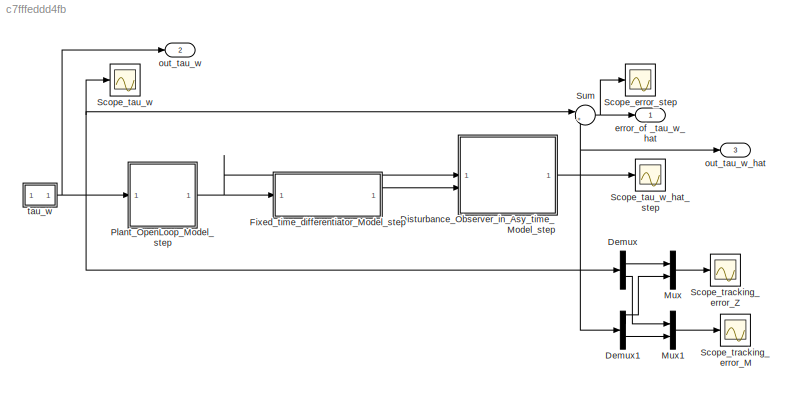
MODEL slx_c7fffeddd4fb
KIND model
CONFIG AbsTol = auto
CONFIG EnableMultiTasking = off
CONFIG FixedStep = 1e-3
CONFIG MaxStep = auto
CONFIG MinStep = auto
CONFIG RelTol = 1e-3
CONFIG SampleTimeConstraint = Unconstrained
CONFIG SolverName = FixedStepAuto
CONFIG StartTime = 0.0
CONFIG StopTime = 150
BLOCK [Demux] Demux
  Outputs = 2
BLOCK [Demux] Demux1
  Outputs = 2
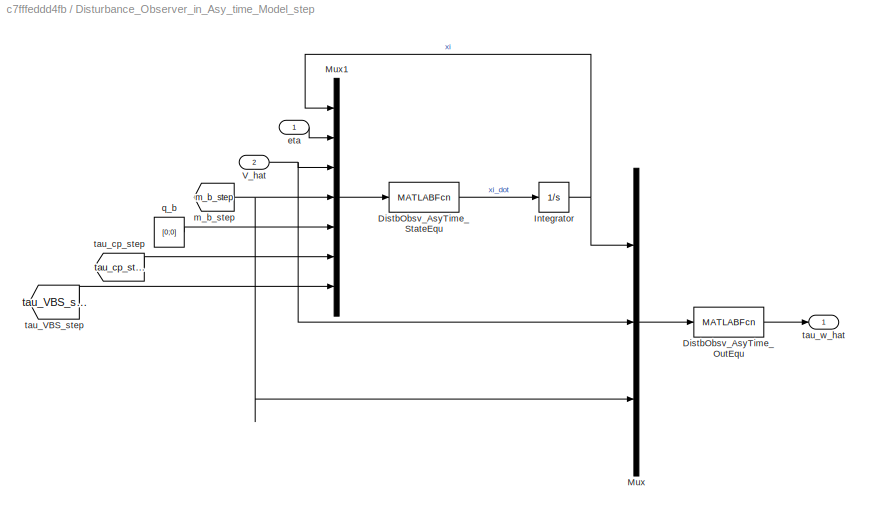
BLOCK [SubSystem] Disturbance_Observer_in_Asy_time_Model_step
BLOCK [MATLABFcn] Disturbance_Observer_in_Asy_time_Model_step/DistbObsv_AsyTime_OutEqu
  MATLABFcn = DistbObsv_AsyTime_OutEqu
  OutputDimensions = 2
  OutputSignalType = real
BLOCK [MATLABFcn] Disturbance_Observer_in_Asy_time_Model_step/DistbObsv_AsyTime_StateEqu
  MATLABFcn = DistbObsv_AsyTime_StateEqu
  OutputDimensions = 2
  OutputSignalType = real
BLOCK [Integrator] Disturbance_Observer_in_Asy_time_Model_step/Integrator
BLOCK [Mux] Disturbance_Observer_in_Asy_time_Model_step/Mux
  DisplayOption = bar
  Inputs = 3
BLOCK [Mux] Disturbance_Observer_in_Asy_time_Model_step/Mux1
  DisplayOption = bar
  Inputs = 7
BLOCK [Inport] Disturbance_Observer_in_Asy_time_Model_step/V_hat
  Port = 2
  PortDimensions = 2
  SignalType = real
BLOCK [Inport] Disturbance_Observer_in_Asy_time_Model_step/eta
  PortDimensions = 2
BLOCK [From] Disturbance_Observer_in_Asy_time_Model_step/m_b_step
  GotoTag = m_b_step
  TagVisibility = global
BLOCK [Constant] Disturbance_Observer_in_Asy_time_Model_step/q_b
  Value = [0;0]
BLOCK [From] Disturbance_Observer_in_Asy_time_Model_step/tau_VBS_step
  GotoTag = tau_VBS_step
  TagVisibility = global
BLOCK [From] Disturbance_Observer_in_Asy_time_Model_step/tau_cp_step
  GotoTag = tau_cp_step
  TagVisibility = global
BLOCK [Outport] Disturbance_Observer_in_Asy_time_Model_step/tau_w_hat
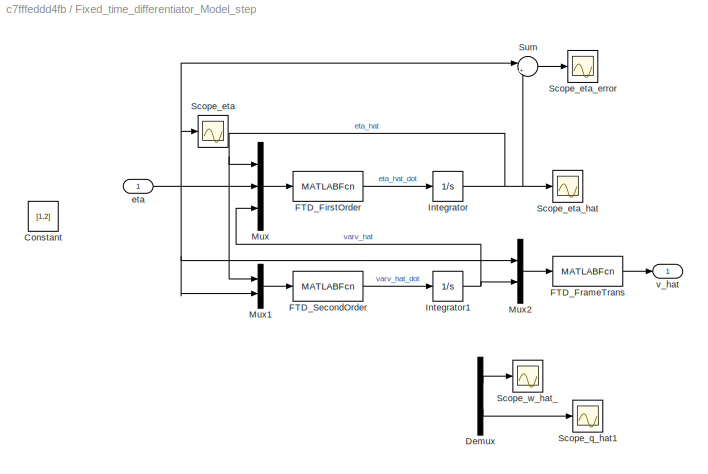
BLOCK [SubSystem] Fixed_time_differentiator_Model_step
BLOCK [Constant] Fixed_time_differentiator_Model_step/Constant
  Value = [1,2]
BLOCK [Demux] Fixed_time_differentiator_Model_step/Demux
  Outputs = 2
BLOCK [MATLABFcn] Fixed_time_differentiator_Model_step/FTD_FirstOrder
  MATLABFcn = FTD_FirstOrder
  OutputDimensions = 2
  OutputSignalType = real
BLOCK [MATLABFcn] Fixed_time_differentiator_Model_step/FTD_FrameTrans
  MATLABFcn = FTD_FrameTrans
  OutputSignalType = real
BLOCK [MATLABFcn] Fixed_time_differentiator_Model_step/FTD_SecondOrder
  MATLABFcn = FTD_SecondOrder
  OutputDimensions = 2
  OutputSignalType = real
BLOCK [Integrator] Fixed_time_differentiator_Model_step/Integrator
BLOCK [Integrator] Fixed_time_differentiator_Model_step/Integrator1
BLOCK [Mux] Fixed_time_differentiator_Model_step/Mux
  DisplayOption = bar
  Inputs = 3
BLOCK [Mux] Fixed_time_differentiator_Model_step/Mux1
  DisplayOption = bar
  Inputs = 2
BLOCK [Mux] Fixed_time_differentiator_Model_step/Mux2
  DisplayOption = bar
  Inputs = 2
BLOCK [Scope] Fixed_time_differentiator_Model_step/Scope_eta
  Floating = off
  NumInputPorts = 1
  ScopeSpecificationString = Simulink.scopes.TimeScopeBlockCfg('CurrentConfiguration', extmgr.ConfigurationSet(extmgr.Configuration('Core','General UI',true),extmgr.Configuration('Core','Source UI',true),extmgr.Configuration('Sources','WiredSimulink',true,'DataLoggingVariableName','ScopeData1'),extmgr.Configuration('Visuals','Time Domain',true,'SerializedDisplays',{struct('MinYLimReal','-15786231295403675401803915265757867719...<+3546ch>
BLOCK [Scope] Fixed_time_differentiator_Model_step/Scope_eta_error
  Floating = off
  NumInputPorts = 1
  ScopeSpecificationString = Simulink.scopes.TimeScopeBlockCfg('CurrentConfiguration', extmgr.ConfigurationSet(extmgr.Configuration('Core','General UI',true),extmgr.Configuration('Core','Source UI',true),extmgr.Configuration('Sources','WiredSimulink',true,'DataLoggingVariableName','ScopeData1'),extmgr.Configuration('Visuals','Time Domain',true,'SerializedDisplays',{struct('MinYLimReal','-0.00000029','MaxYLimReal','0.00000029'...<+1469ch>
BLOCK [Scope] Fixed_time_differentiator_Model_step/Scope_eta_hat
  Floating = off
  NumInputPorts = 1
  ScopeSpecificationString = Simulink.scopes.TimeScopeBlockCfg('CurrentConfiguration', extmgr.ConfigurationSet(extmgr.Configuration('Core','General UI',true),extmgr.Configuration('Core','Source UI',true),extmgr.Configuration('Sources','WiredSimulink',true,'DataLoggingVariableName','ScopeData1'),extmgr.Configuration('Visuals','Time Domain',true,'SerializedDisplays',{struct('MinYLimReal','-0.0267','MaxYLimReal','0.04782','YLabe...<+1426ch>
BLOCK [Scope] Fixed_time_differentiator_Model_step/Scope_q_hat1
  Floating = off
  NumInputPorts = 1
  ScopeSpecificationString = Simulink.scopes.TimeScopeBlockCfg('CurrentConfiguration', extmgr.ConfigurationSet(extmgr.Configuration('Core','General UI',true),extmgr.Configuration('Core','Source UI',true),extmgr.Configuration('Sources','WiredSimulink',true,'DataLoggingVariableName','ScopeData2'),extmgr.Configuration('Visuals','Time Domain',true,'SerializedDisplays',{struct('MinYLimReal','-1.1735','MaxYLimReal','10.38134','YLab...<+1401ch>
BLOCK [Scope] Fixed_time_differentiator_Model_step/Scope_w_hat_
  Floating = off
  NumInputPorts = 1
  ScopeSpecificationString = Simulink.scopes.TimeScopeBlockCfg('CurrentConfiguration', extmgr.ConfigurationSet(extmgr.Configuration('Core','General UI',true),extmgr.Configuration('Core','Source UI',true),extmgr.Configuration('Sources','WiredSimulink',true),extmgr.Configuration('Visuals','Time Domain',true,'SerializedDisplays',{struct('MinYLimReal','-16.18124','MaxYLimReal','-0.62236','YLabelReal','','MinYLimMag','0.00000','Ma...<+1365ch>
BLOCK [Sum] Fixed_time_differentiator_Model_step/Sum
  Inputs = |+-
BLOCK [Inport] Fixed_time_differentiator_Model_step/eta
BLOCK [Outport] Fixed_time_differentiator_Model_step/v_hat
  SignalType = real
BLOCK [Mux] Mux
  DisplayOption = bar
  Inputs = 2
BLOCK [Mux] Mux1
  DisplayOption = bar
  Inputs = 2
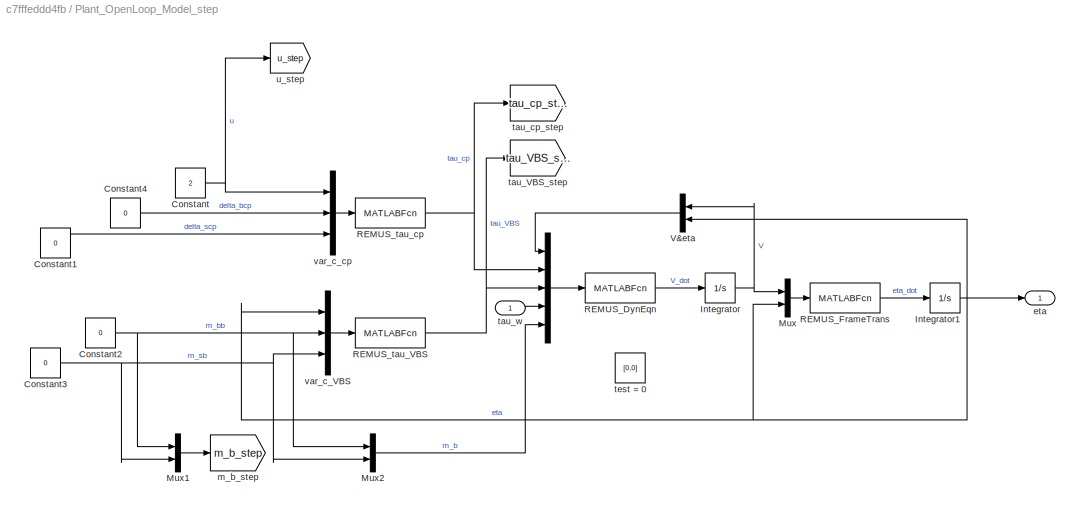
BLOCK [SubSystem] Plant_OpenLoop_Model_step
BLOCK [Mux] Plant_OpenLoop_Model_step/ 
  DisplayOption = bar
  Inputs = 5
BLOCK [Constant] Plant_OpenLoop_Model_step/Constant
  OutDataTypeStr = Inherit: Inherit via back propagation
  Value = 2
BLOCK [Constant] Plant_OpenLoop_Model_step/Constant1
  Value = 0
BLOCK [Constant] Plant_OpenLoop_Model_step/Constant2
  Value = 0
BLOCK [Constant] Plant_OpenLoop_Model_step/Constant3
  Value = 0
BLOCK [Constant] Plant_OpenLoop_Model_step/Constant4
  Value = 0
BLOCK [Integrator] Plant_OpenLoop_Model_step/Integrator
BLOCK [Integrator] Plant_OpenLoop_Model_step/Integrator1
BLOCK [Mux] Plant_OpenLoop_Model_step/Mux
  DisplayOption = bar
  Inputs = 2
BLOCK [Mux] Plant_OpenLoop_Model_step/Mux1
  DisplayOption = bar
  Inputs = 2
BLOCK [Mux] Plant_OpenLoop_Model_step/Mux2
  DisplayOption = bar
  Inputs = 2
BLOCK [MATLABFcn] Plant_OpenLoop_Model_step/REMUS_DynEqn
  MATLABFcn = REMUS_DynEqn
  OutputDimensions = 2
  OutputSignalType = real
BLOCK [MATLABFcn] Plant_OpenLoop_Model_step/REMUS_FrameTrans
  MATLABFcn = REMUS_FrameTrans
  OutputDimensions = 2
  OutputSignalType = real
BLOCK [MATLABFcn] Plant_OpenLoop_Model_step/REMUS_tau_VBS
  MATLABFcn = REMUS_tau_VBS
  OutputDimensions = 2
  OutputSignalType = real
BLOCK [MATLABFcn] Plant_OpenLoop_Model_step/REMUS_tau_cp
  MATLABFcn = REMUS_tau_cp
  OutputDimensions = 2
  OutputSignalType = real
BLOCK [Mux] Plant_OpenLoop_Model_step/V&eta
  DisplayOption = bar
  Inputs = 2
  NameLocation = top
BLOCK [Outport] Plant_OpenLoop_Model_step/eta
BLOCK [Goto] Plant_OpenLoop_Model_step/m_b_step
  GotoTag = m_b_step
  TagVisibility = global
BLOCK [Goto] Plant_OpenLoop_Model_step/tau_VBS_step
  GotoTag = tau_VBS_step
  TagVisibility = global
BLOCK [Goto] Plant_OpenLoop_Model_step/tau_cp_step
  GotoTag = tau_cp_step
  TagVisibility = global
BLOCK [Inport] Plant_OpenLoop_Model_step/tau_w
BLOCK [Constant] Plant_OpenLoop_Model_step/test = 0
  Value = [0,0]
BLOCK [Goto] Plant_OpenLoop_Model_step/u_step
  GotoTag = u_step
  TagVisibility = global
BLOCK [Mux] Plant_OpenLoop_Model_step/var_c_VBS
  DisplayOption = bar
  Inputs = 3
BLOCK [Mux] Plant_OpenLoop_Model_step/var_c_cp
  DisplayOption = bar
  Inputs = 3
BLOCK [Scope] Scope_error_step
  Floating = off
  NumInputPorts = 1
  ScopeSpecificationString = Simulink.scopes.TimeScopeBlockCfg('CurrentConfiguration', extmgr.ConfigurationSet(extmgr.Configuration('Core','General UI',true),extmgr.Configuration('Core','Source UI',true),extmgr.Configuration('Sources','WiredSimulink',true,'DataLoggingVariableName','ScopeData1'),extmgr.Configuration('Visuals','Time Domain',true,'SerializedDisplays',{struct('MinYLimReal','-1.94974','MaxYLimReal','1.99219','YLab...<+1465ch>
BLOCK [Scope] Scope_tau_w
  Floating = off
  NumInputPorts = 1
  ScopeSpecificationString = Simulink.scopes.TimeScopeBlockCfg('CurrentConfiguration', extmgr.ConfigurationSet(extmgr.Configuration('Core','General UI',true),extmgr.Configuration('Core','Source UI',true),extmgr.Configuration('Sources','WiredSimulink',true,'DataLoggingVariableName','ScopeData3'),extmgr.Configuration('Visuals','Time Domain',true,'SerializedDisplays',{struct('MinYLimReal','-18.66143','MaxYLimReal','4.67716','YLa...<+1453ch>
BLOCK [Scope] Scope_tau_w_hat_step
  Floating = off
  NumInputPorts = 1
  ScopeSpecificationString = Simulink.scopes.TimeScopeBlockCfg('CurrentConfiguration', extmgr.ConfigurationSet(extmgr.Configuration('Core','General UI',true),extmgr.Configuration('Core','Source UI',true),extmgr.Configuration('Sources','WiredSimulink',true,'DataLoggingVariableName','ScopeData2'),extmgr.Configuration('Visuals','Time Domain',true,'SerializedDisplays',{struct('MinYLimReal','-18.08031','MaxYLimReal','5.3661','YLab...<+1525ch>
BLOCK [Scope] Scope_tracking_error_M
  Floating = off
  NumInputPorts = 1
  ScopeSpecificationString = Simulink.scopes.TimeScopeBlockCfg('CurrentConfiguration', extmgr.ConfigurationSet(extmgr.Configuration('Core','General UI',true),extmgr.Configuration('Core','Source UI',true),extmgr.Configuration('Sources','WiredSimulink',true,'DataLoggingVariableName','ScopeData2'),extmgr.Configuration('Visuals','Time Domain',true,'SerializedDisplays',{struct('MinYLimReal','-6.47396','MaxYLimReal','2.48923','YLab...<+1431ch>
BLOCK [Scope] Scope_tracking_error_Z
  Floating = off
  NumInputPorts = 1
  ScopeSpecificationString = Simulink.scopes.TimeScopeBlockCfg('CurrentConfiguration', extmgr.ConfigurationSet(extmgr.Configuration('Core','General UI',true),extmgr.Configuration('Core','Source UI',true),extmgr.Configuration('Sources','WiredSimulink',true,'DataLoggingVariableName','ScopeData1'),extmgr.Configuration('Visuals','Time Domain',true,'SerializedDisplays',{struct('MinYLimReal','-17.49464','MaxYLimReal','5.30103','YLa...<+1435ch>
BLOCK [Sum] Sum
  Inputs = |+-
BLOCK [Outport] error_of _tau_w_hat
BLOCK [Outport] out_tau_w
  Port = 2
BLOCK [Outport] out_tau_w_hat
  Port = 3
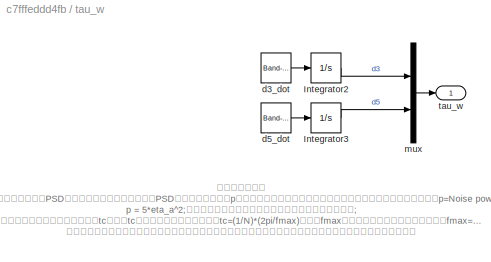
BLOCK [SubSystem] tau_w
BLOCK [Integrator] tau_w/Integrator2
BLOCK [Integrator] tau_w/Integrator3
BLOCK [Reference] tau_w/d3_dot  REF=simulink/Sources/Band-Limited
White Noise
  SourceBlock = simulink/Sources/Band-Limited\nWhite Noise
  SourceType = Band-Limited White Noise.
BLOCK [Reference] tau_w/d5_dot  REF=simulink/Sources/Band-Limited
White Noise
  SourceBlock = simulink/Sources/Band-Limited\nWhite Noise
  SourceType = Band-Limited White Noise.
BLOCK [Mux] tau_w/mux
  DisplayOption = bar
  Inputs = 2
BLOCK [Outport] tau_w/tau_w
  SignalType = real
ANNOTATION tau_w: 高斯白噪声模块 噪声功率：指定白噪声PSD（能量谱密度）的高度，这个PSD并不是噪声的能量p（并且这个能量的分布是常值），它与能量之间有一个转换关系，p=Noise power/tc，tc就在下面；默认值为0.1。S(w) = 0.5*eta_a^2; p = 5*eta_a^2;也就是说此处的噪声能量相当于信号幅值平方的平均值; 采样时间：指定噪声的相关时间tc，这个tc与系统的带宽之间的关系是tc=(1/N)*(2pi/fmax)，其中fmax是系统的带宽（实际上是角频率，fmax=2*pi*f，这个f才是我们常使用的频率Hz），N可以看成是采样率与系统频率的倍数关系（文档中推荐使用100），即采样率=N*系统频率，这和采样定理一致；默认值是0.1。 种子：这个参数是用来指定随机数生成器的初始值的，即种子，指定随机数生成器的起始种子。相当于不同相位。
LINE Demux1:1 -> Mux:2
LINE Demux1:2 -> Mux1:2
LINE Demux:1 -> Mux:1
LINE Demux:2 -> Mux1:1
LINE Disturbance_Observer_in_Asy_time_Model_step/DistbObsv_AsyTime_OutEqu:1 -> Disturbance_Observer_in_Asy_time_Model_step/tau_w_hat:1
LINE Disturbance_Observer_in_Asy_time_Model_step/DistbObsv_AsyTime_StateEqu:1 -> Disturbance_Observer_in_Asy_time_Model_step/Integrator:1
NET Disturbance_Observer_in_Asy_time_Model_step/Integrator:1 -> Disturbance_Observer_in_Asy_time_Model_step/Mux1:1, Disturbance_Observer_in_Asy_time_Model_step/Mux:1
LINE Disturbance_Observer_in_Asy_time_Model_step/Mux1:1 -> Disturbance_Observer_in_Asy_time_Model_step/DistbObsv_AsyTime_StateEqu:1
LINE Disturbance_Observer_in_Asy_time_Model_step/Mux:1 -> Disturbance_Observer_in_Asy_time_Model_step/DistbObsv_AsyTime_OutEqu:1
NET Disturbance_Observer_in_Asy_time_Model_step/V_hat:1 -> Disturbance_Observer_in_Asy_time_Model_step/Mux1:3, Disturbance_Observer_in_Asy_time_Model_step/Mux:2
LINE Disturbance_Observer_in_Asy_time_Model_step/eta:1 -> Disturbance_Observer_in_Asy_time_Model_step/Mux1:2
NET Disturbance_Observer_in_Asy_time_Model_step/m_b_step:1 -> Disturbance_Observer_in_Asy_time_Model_step/Mux1:4, Disturbance_Observer_in_Asy_time_Model_step/Mux:3
LINE Disturbance_Observer_in_Asy_time_Model_step/q_b:1 -> Disturbance_Observer_in_Asy_time_Model_step/Mux1:5
LINE Disturbance_Observer_in_Asy_time_Model_step/tau_VBS_step:1 -> Disturbance_Observer_in_Asy_time_Model_step/Mux1:7
LINE Disturbance_Observer_in_Asy_time_Model_step/tau_cp_step:1 -> Disturbance_Observer_in_Asy_time_Model_step/Mux1:6
NET Disturbance_Observer_in_Asy_time_Model_step:1 -> Demux1:1, Scope_tau_w_hat_step:1, Sum:2, out_tau_w_hat:1
LINE Fixed_time_differentiator_Model_step/Demux:1 -> Fixed_time_differentiator_Model_step/Scope_w_hat_:1
LINE Fixed_time_differentiator_Model_step/Demux:2 -> Fixed_time_differentiator_Model_step/Scope_q_hat1:1
LINE Fixed_time_differentiator_Model_step/FTD_FirstOrder:1 -> Fixed_time_differentiator_Model_step/Integrator:1
LINE Fixed_time_differentiator_Model_step/FTD_FrameTrans:1 -> Fixed_time_differentiator_Model_step/v_hat:1
LINE Fixed_time_differentiator_Model_step/FTD_SecondOrder:1 -> Fixed_time_differentiator_Model_step/Integrator1:1
NET Fixed_time_differentiator_Model_step/Integrator1:1 -> Fixed_time_differentiator_Model_step/Mux2:2, Fixed_time_differentiator_Model_step/Mux:3
NET Fixed_time_differentiator_Model_step/Integrator:1 -> Fixed_time_differentiator_Model_step/Mux1:1, Fixed_time_differentiator_Model_step/Mux:1, Fixed_time_differentiator_Model_step/Scope_eta_hat:1, Fixed_time_differentiator_Model_step/Sum:2
LINE Fixed_time_differentiator_Model_step/Mux1:1 -> Fixed_time_differentiator_Model_step/FTD_SecondOrder:1
LINE Fixed_time_differentiator_Model_step/Mux2:1 -> Fixed_time_differentiator_Model_step/FTD_FrameTrans:1
LINE Fixed_time_differentiator_Model_step/Mux:1 -> Fixed_time_differentiator_Model_step/FTD_FirstOrder:1
LINE Fixed_time_differentiator_Model_step/Sum:1 -> Fixed_time_differentiator_Model_step/Scope_eta_error:1
NET Fixed_time_differentiator_Model_step/eta:1 -> Fixed_time_differentiator_Model_step/Mux1:2, Fixed_time_differentiator_Model_step/Mux2:1, Fixed_time_differentiator_Model_step/Mux:2, Fixed_time_differentiator_Model_step/Scope_eta:1, Fixed_time_differentiator_Model_step/Sum:1
LINE Fixed_time_differentiator_Model_step:1 -> Disturbance_Observer_in_Asy_time_Model_step:2
LINE Mux1:1 -> Scope_tracking_error_M:1
LINE Mux:1 -> Scope_tracking_error_Z:1
LINE Plant_OpenLoop_Model_step/ :1 -> Plant_OpenLoop_Model_step/REMUS_DynEqn:1
LINE Plant_OpenLoop_Model_step/Constant1:1 -> Plant_OpenLoop_Model_step/var_c_cp:3
NET Plant_OpenLoop_Model_step/Constant2:1 -> Plant_OpenLoop_Model_step/Mux1:1, Plant_OpenLoop_Model_step/Mux2:1, Plant_OpenLoop_Model_step/var_c_VBS:2
NET Plant_OpenLoop_Model_step/Constant3:1 -> Plant_OpenLoop_Model_step/Mux1:2, Plant_OpenLoop_Model_step/Mux2:2, Plant_OpenLoop_Model_step/var_c_VBS:3
LINE Plant_OpenLoop_Model_step/Constant4:1 -> Plant_OpenLoop_Model_step/var_c_cp:2
NET Plant_OpenLoop_Model_step/Constant:1 -> Plant_OpenLoop_Model_step/u_step:1, Plant_OpenLoop_Model_step/var_c_cp:1
NET Plant_OpenLoop_Model_step/Integrator1:1 -> Plant_OpenLoop_Model_step/Mux:2, Plant_OpenLoop_Model_step/V&eta:2, Plant_OpenLoop_Model_step/eta:1, Plant_OpenLoop_Model_step/var_c_VBS:1
NET Plant_OpenLoop_Model_step/Integrator:1 -> Plant_OpenLoop_Model_step/Mux:1, Plant_OpenLoop_Model_step/V&eta:1
LINE Plant_OpenLoop_Model_step/Mux1:1 -> Plant_OpenLoop_Model_step/m_b_step:1
LINE Plant_OpenLoop_Model_step/Mux2:1 -> Plant_OpenLoop_Model_step/ :5
LINE Plant_OpenLoop_Model_step/Mux:1 -> Plant_OpenLoop_Model_step/REMUS_FrameTrans:1
LINE Plant_OpenLoop_Model_step/REMUS_DynEqn:1 -> Plant_OpenLoop_Model_step/Integrator:1
LINE Plant_OpenLoop_Model_step/REMUS_FrameTrans:1 -> Plant_OpenLoop_Model_step/Integrator1:1
NET Plant_OpenLoop_Model_step/REMUS_tau_VBS:1 -> Plant_OpenLoop_Model_step/ :3, Plant_OpenLoop_Model_step/tau_VBS_step:1
NET Plant_OpenLoop_Model_step/REMUS_tau_cp:1 -> Plant_OpenLoop_Model_step/ :2, Plant_OpenLoop_Model_step/tau_cp_step:1
LINE Plant_OpenLoop_Model_step/V&eta:1 -> Plant_OpenLoop_Model_step/ :1
LINE Plant_OpenLoop_Model_step/tau_w:1 -> Plant_OpenLoop_Model_step/ :4
LINE Plant_OpenLoop_Model_step/var_c_VBS:1 -> Plant_OpenLoop_Model_step/REMUS_tau_VBS:1
LINE Plant_OpenLoop_Model_step/var_c_cp:1 -> Plant_OpenLoop_Model_step/REMUS_tau_cp:1
NET Plant_OpenLoop_Model_step:1 -> Disturbance_Observer_in_Asy_time_Model_step:1, Fixed_time_differentiator_Model_step:1
NET Sum:1 -> Scope_error_step:1, error_of _tau_w_hat:1
LINE tau_w/Integrator2:1 -> tau_w/mux:1
LINE tau_w/Integrator3:1 -> tau_w/mux:2
LINE tau_w/d3_dot:1 -> tau_w/Integrator2:1
LINE tau_w/d5_dot:1 -> tau_w/Integrator3:1
LINE tau_w/mux:1 -> tau_w/tau_w:1
NET tau_w:1 -> Demux:1, Plant_OpenLoop_Model_step:1, Scope_tau_w:1, Sum:1, out_tau_w:1
note: NET lines group one-source signal fan-out (src -> all destinations, sorted); 1:1 wires keep LINE
